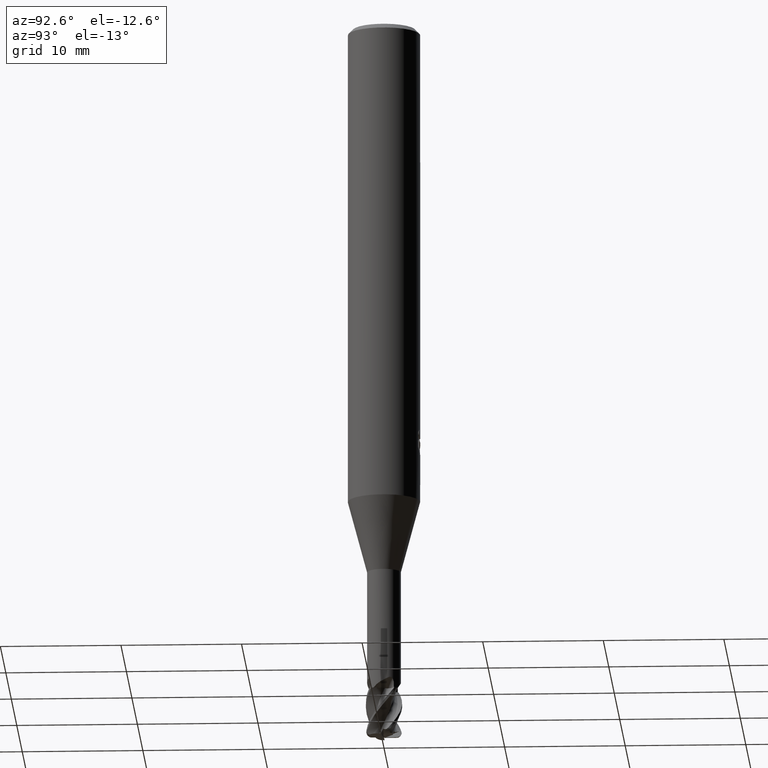
[diagram: clean part render]
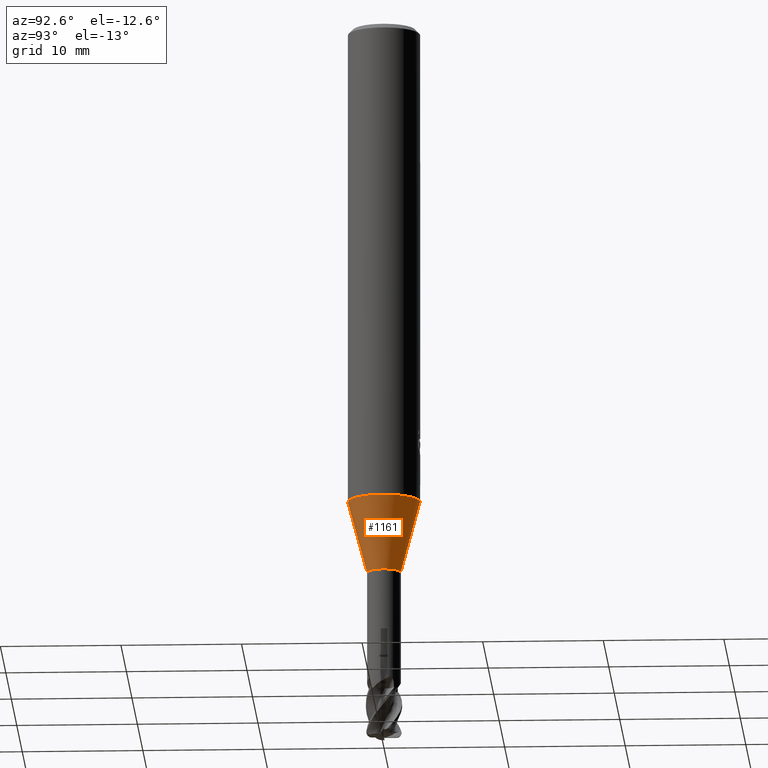
[diagram: same view with one face highlighted and labeled with its STEP entity id]
A machine part, auxiliary view. The second image highlights one B-rep face of the part: STEP entity #1161.
In plain terms, the highlighted conical surface has half-angle 15.001 deg.
Its self-contained STEP definition (entity closure, byte-faithful):
#707=VERTEX_POINT('',#1702);
#941=VERTEX_POINT('',#1951);
#949=VERTEX_POINT('',#1959);
#1161=ADVANCED_FACE('',(#2197),#2198,.T.);
#1167=EDGE_CURVE('',#707,#941,#2204,.T.);
#1221=EDGE_CURVE('',#1305,#949,#2264,.T.);
#1263=EDGE_CURVE('',#1305,#707,#2311,.T.);
#1305=VERTEX_POINT('',#2355);
#1339=EDGE_CURVE('',#941,#949,#2394,.T.);
#1702=CARTESIAN_POINT('',(0.0,1.39995,-46.0));
#1951=CARTESIAN_POINT('',(1.71438766503364E-016,-1.39995,-46.0));
#1959=CARTESIAN_POINT('',(3.67375783114944E-016,-2.99995,-40.029));
#2197=FACE_OUTER_BOUND('',#5741,.T.);
#2198=CONICAL_SURFACE('',#5742,2.19995,0.261811165190814);
#2204=CIRCLE('',#5790,1.39995);
#2264=CIRCLE('',#6096,2.99995);
#2311=LINE('',#6642,#6643);
#2355=CARTESIAN_POINT('',(0.0,2.99995,-40.029));
#2394=LINE('',#6925,#6926);
#5741=EDGE_LOOP('',(#8509,#8510,#8511,#8512));
#5742=AXIS2_PLACEMENT_3D('',#8513,#8514,#8515);
#5790=AXIS2_PLACEMENT_3D('',#8519,#8520,#8521);
#6096=AXIS2_PLACEMENT_3D('',#8587,#8588,#8589);
#6642=CARTESIAN_POINT('',(-2.69407274809154E-016,2.19995,-43.0145));
#6643=VECTOR('',#8642,1.0);
#6925=CARTESIAN_POINT('',(2.69407274809154E-016,-2.19995,-43.0145));
#6926=VECTOR('',#8723,1.0);
#8509=ORIENTED_EDGE('',*,*,#1263,.F.);
#8510=ORIENTED_EDGE('',*,*,#1221,.T.);
#8511=ORIENTED_EDGE('',*,*,#1339,.F.);
#8512=ORIENTED_EDGE('',*,*,#1167,.F.);
#8513=CARTESIAN_POINT('',(0.0,0.0,-43.0145));
#8514=DIRECTION('',(-0.0,-0.0,1.0));
#8515=DIRECTION('',(0.0,1.0,0.0));
#8519=CARTESIAN_POINT('',(0.0,0.0,-46.0));
#8520=DIRECTION('',(0.0,0.0,-1.0));
#8521=DIRECTION('',(0.0,1.0,0.0));
#8587=CARTESIAN_POINT('',(0.0,0.0,-40.029));
#8588=DIRECTION('',(0.0,0.0,-1.0));
#8589=DIRECTION('',(0.0,1.0,0.0));
#8642=DIRECTION('',(3.16965378328951E-017,-0.258830421171345,-0.965922778008814));
#8723=DIRECTION('',(3.16965378328951E-017,-0.258830421171345,0.965922778008814));